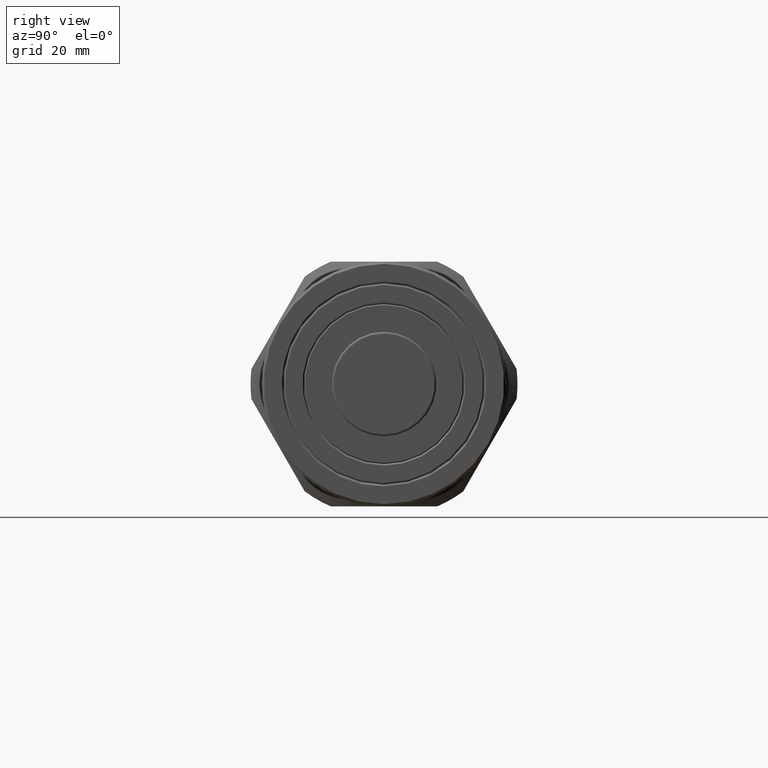
[diagram: clean part render]
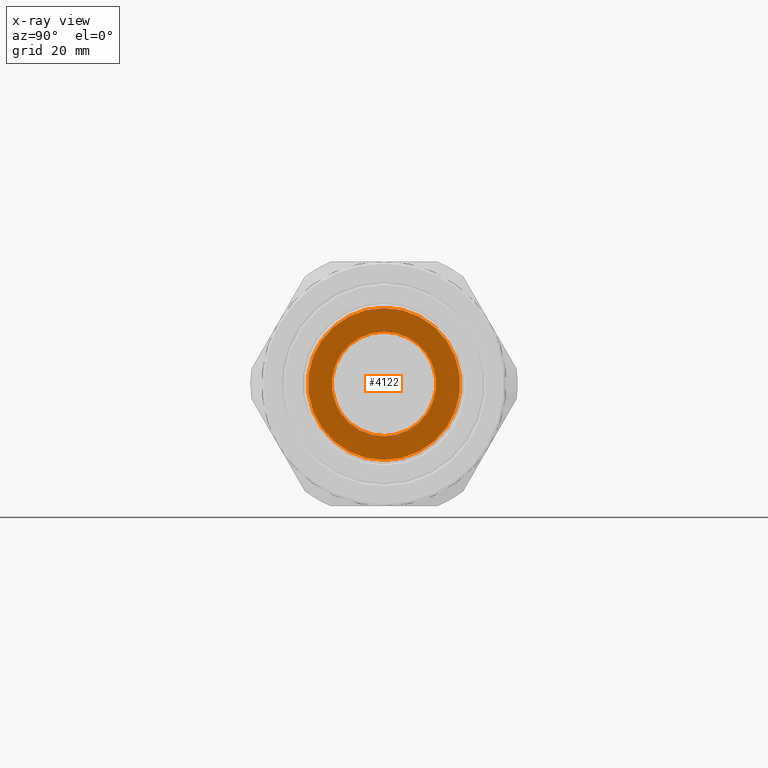
[diagram: x-ray — body ghosted, one internal face saturated and labeled with its STEP entity id]
A machine part, right view, then the same camera in x-ray: the body is ghosted and one INTERNAL B-rep face — a face not visible from any outside direction — is saturated and labeled: STEP entity #4122.
In plain terms, the highlighted planar face has unit normal (-1, 0, 0).
Its self-contained STEP definition (entity closure, byte-faithful):
#114 = EDGE_CURVE ( 'NONE', #4483, #4277, #5850, .T. ) ;
#908 = EDGE_LOOP ( 'NONE', ( #7228, #7637 ) ) ;
#949 = EDGE_LOOP ( 'NONE', ( #7275, #7251 ) ) ;
#958 = EDGE_CURVE ( 'NONE', #4277, #4483, #6067, .T. ) ;
#1480 = DIRECTION ( 'NONE',  ( 0.0000000000000000000, 0.0000000000000000000, 1.000000000000000000 ) ) ;
#1778 = CARTESIAN_POINT ( 'NONE',  ( 69.83195191829719300, 0.0000000000000000000, 0.0000000000000000000 ) ) ;
#2114 = DIRECTION ( 'NONE',  ( 1.000000000000000000, -0.0000000000000000000, -0.0000000000000000000 ) ) ;
#2159 = DIRECTION ( 'NONE',  ( 0.0000000000000000000, 0.0000000000000000000, 1.000000000000000000 ) ) ;
#2176 = CARTESIAN_POINT ( 'NONE',  ( 69.83195191829719300, 19.96179703141265100, 0.0000000000000000000 ) ) ;
#2179 = PLANE ( 'NONE',  #6502 ) ;
#2188 = DIRECTION ( 'NONE',  ( -1.000000000000000000, 0.0000000000000000000, 0.0000000000000000000 ) ) ;
#3042 = CARTESIAN_POINT ( 'NONE',  ( 69.83195191829719300, -3.633261382809469700E-015, -17.10000000000001200 ) ) ;
#3531 = CARTESIAN_POINT ( 'NONE',  ( 69.83195191829719300, 1.438959988998140200E-015, -11.75000000000000000 ) ) ;
#3768 = DIRECTION ( 'NONE',  ( 0.0000000000000000000, 0.0000000000000000000, 1.000000000000000000 ) ) ;
#3769 = DIRECTION ( 'NONE',  ( -1.000000000000000000, 0.0000000000000000000, 0.0000000000000000000 ) ) ;
#3770 = CARTESIAN_POINT ( 'NONE',  ( 69.83195191829719300, 2.738146064648834700E-015, -1.151476131235242000E-014 ) ) ;
#3854 = DIRECTION ( 'NONE',  ( 0.0000000000000000000, 0.0000000000000000000, 1.000000000000000000 ) ) ;
#3855 = DIRECTION ( 'NONE',  ( -1.000000000000000000, 0.0000000000000000000, 0.0000000000000000000 ) ) ;
#3856 = CARTESIAN_POINT ( 'NONE',  ( 69.83195191829719300, 2.738146064648834700E-015, -1.151476131235242000E-014 ) ) ;
#3914 = CARTESIAN_POINT ( 'NONE',  ( 69.83195191829719300, 0.0000000000000000000, 11.75000000000000000 ) ) ;
#3920 = CARTESIAN_POINT ( 'NONE',  ( 69.83195191829719300, 1.124834555322645800E-014, 17.09999999999999100 ) ) ;
#4122 = ADVANCED_FACE ( 'NONE', ( #5586, #5575 ), #2179, .F. ) ;
#4222 = VERTEX_POINT ( 'NONE', #3920 ) ;
#4277 = VERTEX_POINT ( 'NONE', #3914 ) ;
#4468 = VERTEX_POINT ( 'NONE', #3042 ) ;
#4483 = VERTEX_POINT ( 'NONE', #3531 ) ;
#4685 = DIRECTION ( 'NONE',  ( 0.0000000000000000000, 0.0000000000000000000, 1.000000000000000000 ) ) ;
#4752 = DIRECTION ( 'NONE',  ( 1.000000000000000000, -0.0000000000000000000, -0.0000000000000000000 ) ) ;
#4809 = CARTESIAN_POINT ( 'NONE',  ( 69.83195191829719300, 0.0000000000000000000, 0.0000000000000000000 ) ) ;
#5151 = CIRCLE ( 'NONE', #6458, 17.10000000000000100 ) ;
#5575 = FACE_OUTER_BOUND ( 'NONE', #949, .T. ) ;
#5586 = FACE_BOUND ( 'NONE', #908, .T. ) ;
#5850 = CIRCLE ( 'NONE', #6667, 11.75000000000000000 ) ;
#5945 = CIRCLE ( 'NONE', #6423, 17.10000000000000100 ) ;
#6067 = CIRCLE ( 'NONE', #6707, 11.75000000000000000 ) ;
#6423 = AXIS2_PLACEMENT_3D ( 'NONE', #3770, #3769, #3768 ) ;
#6458 = AXIS2_PLACEMENT_3D ( 'NONE', #3856, #3855, #3854 ) ;
#6502 = AXIS2_PLACEMENT_3D ( 'NONE', #2176, #2188, #2159 ) ;
#6667 = AXIS2_PLACEMENT_3D ( 'NONE', #4809, #4752, #4685 ) ;
#6707 = AXIS2_PLACEMENT_3D ( 'NONE', #1778, #2114, #1480 ) ;
#6781 = EDGE_CURVE ( 'NONE', #4222, #4468, #5151, .T. ) ;
#6885 = EDGE_CURVE ( 'NONE', #4468, #4222, #5945, .T. ) ;
#7228 = ORIENTED_EDGE ( 'NONE', *, *, #958, .F. ) ;
#7251 = ORIENTED_EDGE ( 'NONE', *, *, #6781, .F. ) ;
#7275 = ORIENTED_EDGE ( 'NONE', *, *, #6885, .F. ) ;
#7637 = ORIENTED_EDGE ( 'NONE', *, *, #114, .F. ) ;